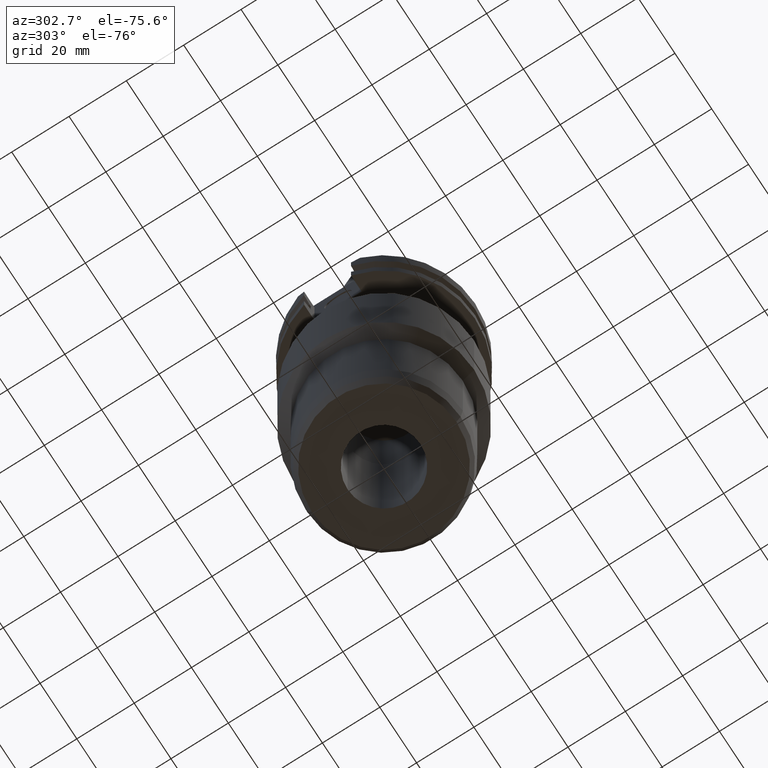
[diagram: clean part render]
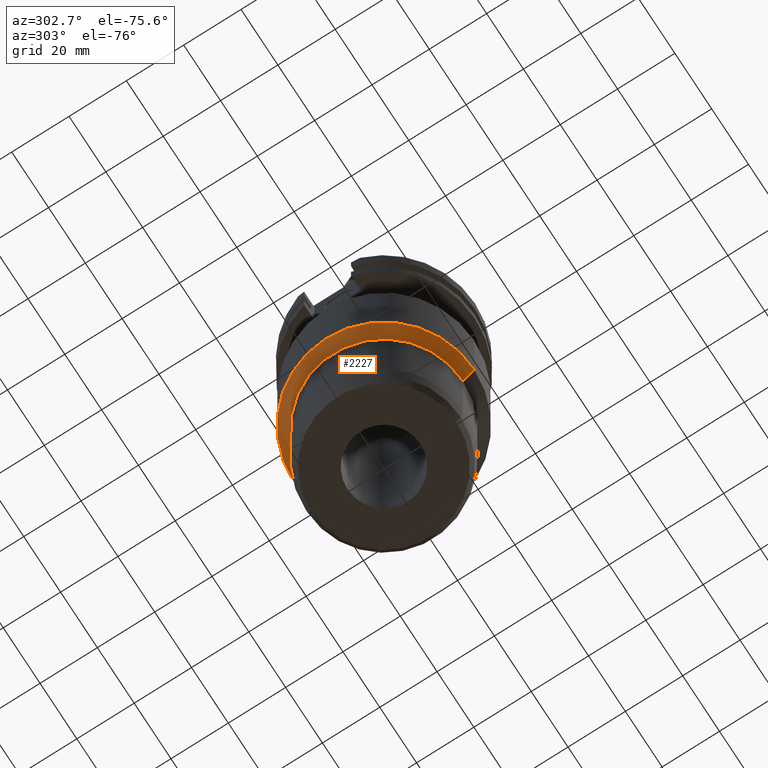
[diagram: same view with one face highlighted and labeled with its STEP entity id]
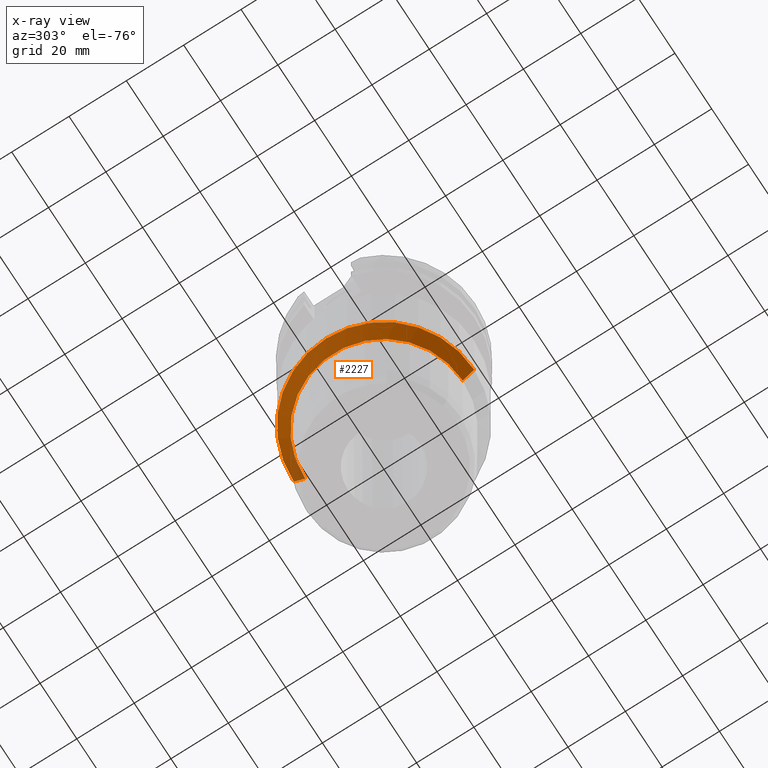
[diagram: x-ray of the same camera — body ghosted, the highlighted face saturated]
A machine part, auxiliary view. The second image highlights one B-rep face of the part: STEP entity #2227.
The next image is the same camera in x-ray: the body ghosted, the highlighted face saturated — about 5% of this face is hidden behind the body in this view.
In plain terms, the highlighted conical surface has half-angle 39.578 deg.
Its self-contained STEP definition (entity closure, byte-faithful):
#922=DIRECTION('',(0.E0,-6.371280869205E-1,-7.707579392111E-1));
#923=VECTOR('',#922,6.199695290614E0);
#924=CARTESIAN_POINT('',(0.E0,3.145E1,-7.86E1));
#925=LINE('',#924,#923);
#945=CARTESIAN_POINT('',(0.E0,0.E0,-7.86E1));
#946=DIRECTION('',(0.E0,0.E0,1.E0));
#947=DIRECTION('',(0.E0,1.E0,0.E0));
#948=AXIS2_PLACEMENT_3D('',#945,#946,#947);
#953=DIRECTION('',(0.E0,6.371280869205E-1,-7.707579392111E-1));
#954=VECTOR('',#953,6.199695290614E0);
#955=CARTESIAN_POINT('',(0.E0,-3.145E1,-7.86E1));
#956=LINE('',#955,#954);
#960=CARTESIAN_POINT('',(0.E0,0.E0,-8.337846436593E1));
#961=DIRECTION('',(0.E0,0.E0,-1.E0));
#962=DIRECTION('',(0.E0,-1.E0,0.E0));
#963=AXIS2_PLACEMENT_3D('',#960,#961,#962);
#1362=CARTESIAN_POINT('',(0.E0,2.75E1,-8.337846436593E1));
#1363=VERTEX_POINT('',#1362);
#1364=CARTESIAN_POINT('',(0.E0,-2.75E1,-8.337846436593E1));
#1365=VERTEX_POINT('',#1364);
#1366=CARTESIAN_POINT('',(0.E0,3.145E1,-7.86E1));
#1367=VERTEX_POINT('',#1366);
#1368=CARTESIAN_POINT('',(0.E0,-3.145E1,-7.86E1));
#1369=VERTEX_POINT('',#1368);
#2215=CARTESIAN_POINT('',(0.E0,0.E0,-8.098923218297E1));
#2216=DIRECTION('',(0.E0,0.E0,1.E0));
#2217=DIRECTION('',(0.E0,1.E0,0.E0));
#2218=AXIS2_PLACEMENT_3D('',#2215,#2216,#2217);
#2219=CONICAL_SURFACE('',#2218,2.9475E1,3.9578E1);
#2220=ORIENTED_EDGE('',*,*,#2205,.F.);
#2221=ORIENTED_EDGE('',*,*,#2182,.T.);
#2222=ORIENTED_EDGE('',*,*,#2209,.T.);
#2224=ORIENTED_EDGE('',*,*,#2223,.T.);
#2225=EDGE_LOOP('',(#2220,#2221,#2222,#2224));
#2226=FACE_OUTER_BOUND('',#2225,.F.);
#949=CIRCLE('',#948,3.145E1);
#964=CIRCLE('',#963,2.75E1);
#2182=EDGE_CURVE('',#1367,#1369,#949,.T.);
#2205=EDGE_CURVE('',#1367,#1363,#925,.T.);
#2209=EDGE_CURVE('',#1369,#1365,#956,.T.);
#2223=EDGE_CURVE('',#1365,#1363,#964,.T.);
#2227=ADVANCED_FACE('',(#2226),#2219,.T.);